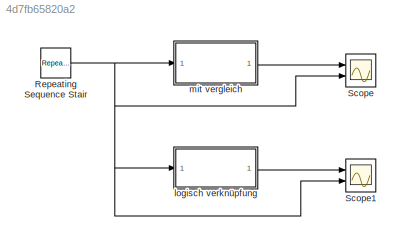
MODEL slx_4d7fb65820a2
KIND model
CONFIG AbsTol = auto
CONFIG FixedStep = auto
CONFIG MaxStep = auto
CONFIG MinStep = auto
CONFIG RelTol = 1e-3
CONFIG SampleTimeConstraint = Unconstrained
CONFIG Solver = FixedStepAuto
CONFIG SolverMode = Auto
CONFIG SolverName = FixedStepAuto
CONFIG StartTime = 0.0
CONFIG StopTime = 10.0
BLOCK [Reference] Repeating Sequence Stair  REF=simulink/Sources/Repeating
Sequence
Stair
  Ports = [0, 1]
  SourceBlock = simulink/Sources/Repeating\nSequence\nStair
  SourceType = Repeating Sequence Stair
BLOCK [Scope] Scope
  NumInputPorts = 2
  Ports = [2]
  ScopeSpecificationString = Simulink.scopes.TimeScopeBlockCfg('CurrentConfiguration', extmgr.ConfigurationSet(extmgr.Configuration('Core','General UI',true),extmgr.Configuration('Core','Source UI',true),extmgr.Configuration('Sources','WiredSimulink',true),extmgr.Configuration('Visuals','Time Domain',true,'SerializedDisplays',{struct('MinYLimReal','-0.125','MaxYLimReal','1.125','YLabelReal','','MinYLimMag','0.00000','MaxYLimM...<+1965ch>
BLOCK [Scope] Scope1
  NumInputPorts = 2
  Ports = [2]
  ScopeSpecificationString = Simulink.scopes.TimeScopeBlockCfg('CurrentConfiguration', extmgr.ConfigurationSet(extmgr.Configuration('Core','General UI',true),extmgr.Configuration('Core','Source UI',true),extmgr.Configuration('Sources','WiredSimulink',true,'DataLoggingVariableName','ScopeData1'),extmgr.Configuration('Visuals','Time Domain',true,'SerializedDisplays',{struct('MinYLimReal','-0.125','MaxYLimReal','1.125','YLabelRe...<+2010ch>
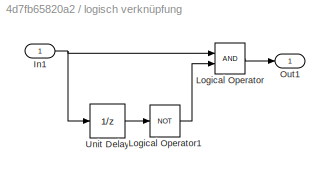
BLOCK [SubSystem] logisch verknüpfung
  Ports = [1, 1]
  RequestExecContextInheritance = off
  Variant = off
BLOCK [Inport] logisch verknüpfung/In1
  IconDisplay = Port number
BLOCK [Logic] logisch verknüpfung/Logical Operator
  AllPortsSameDT = off
  OutDataTypeStr = boolean
  Ports = [2, 1]
BLOCK [Logic] logisch verknüpfung/Logical Operator1
  AllPortsSameDT = off
  Operator = NOT
  OutDataTypeStr = boolean
  Ports = [1, 1]
BLOCK [Outport] logisch verknüpfung/Out1
  IconDisplay = Port number
BLOCK [UnitDelay] logisch verknüpfung/Unit Delay
  InputProcessing = Elements as channels (sample based)
  SampleTime = -1
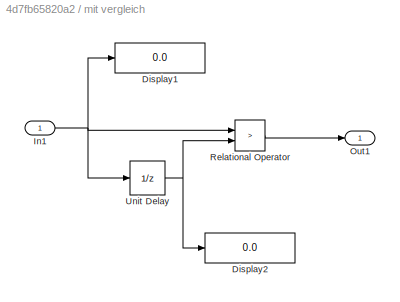
BLOCK [SubSystem] mit vergleich
  Ports = [1, 1]
  RequestExecContextInheritance = off
  Variant = off
BLOCK [Display] mit vergleich/Display1
  Decimation = 1
  Ports = [1]
BLOCK [Display] mit vergleich/Display2
  Decimation = 1
  Ports = [1]
BLOCK [Inport] mit vergleich/In1
  IconDisplay = Port number
BLOCK [Outport] mit vergleich/Out1
  IconDisplay = Port number
BLOCK [RelationalOperator] mit vergleich/Relational Operator
  InputSameDT = off
  Operator = >
  OutDataTypeStr = boolean
  Ports = [2, 1]
BLOCK [UnitDelay] mit vergleich/Unit Delay
  InputProcessing = Elements as channels (sample based)
  SampleTime = -1
NET Repeating Sequence Stair:1 -> Scope1:2, Scope:2, logisch verknüpfung:1, mit vergleich:1
NET logisch verknüpfung/In1:1 -> logisch verknüpfung/Logical Operator:1, logisch verknüpfung/Unit Delay:1
LINE logisch verknüpfung/Logical Operator1:1 -> logisch verknüpfung/Logical Operator:2
LINE logisch verknüpfung/Logical Operator:1 -> logisch verknüpfung/Out1:1
LINE logisch verknüpfung/Unit Delay:1 -> logisch verknüpfung/Logical Operator1:1
LINE logisch verknüpfung:1 -> Scope1:1
NET mit vergleich/In1:1 -> mit vergleich/Display1:1, mit vergleich/Relational Operator:1, mit vergleich/Unit Delay:1
LINE mit vergleich/Relational Operator:1 -> mit vergleich/Out1:1
NET mit vergleich/Unit Delay:1 -> mit vergleich/Display2:1, mit vergleich/Relational Operator:2
LINE mit vergleich:1 -> Scope:1
note: NET lines group one-source signal fan-out (src -> all destinations, sorted); 1:1 wires keep LINE
